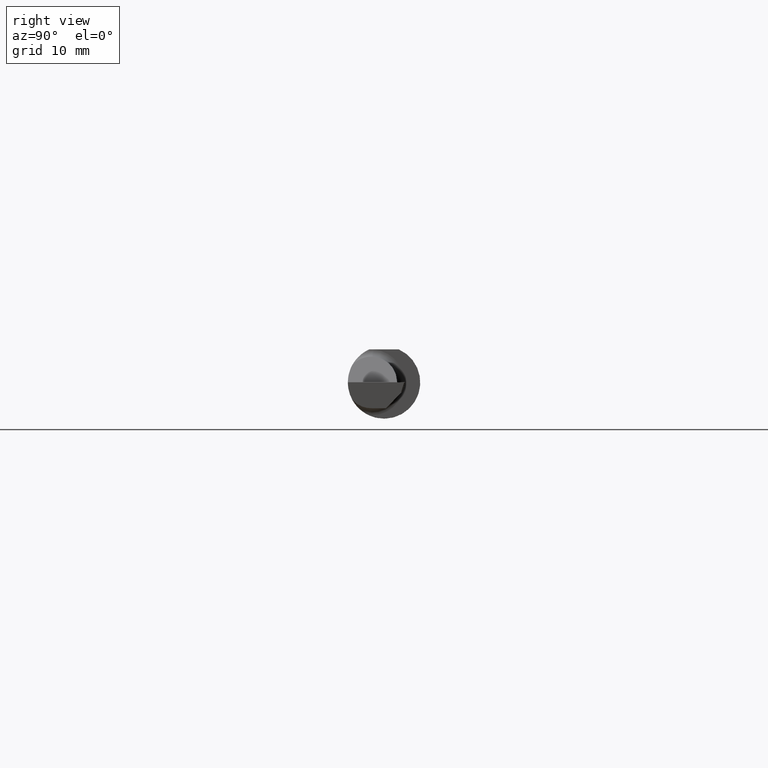
[diagram: clean part render]
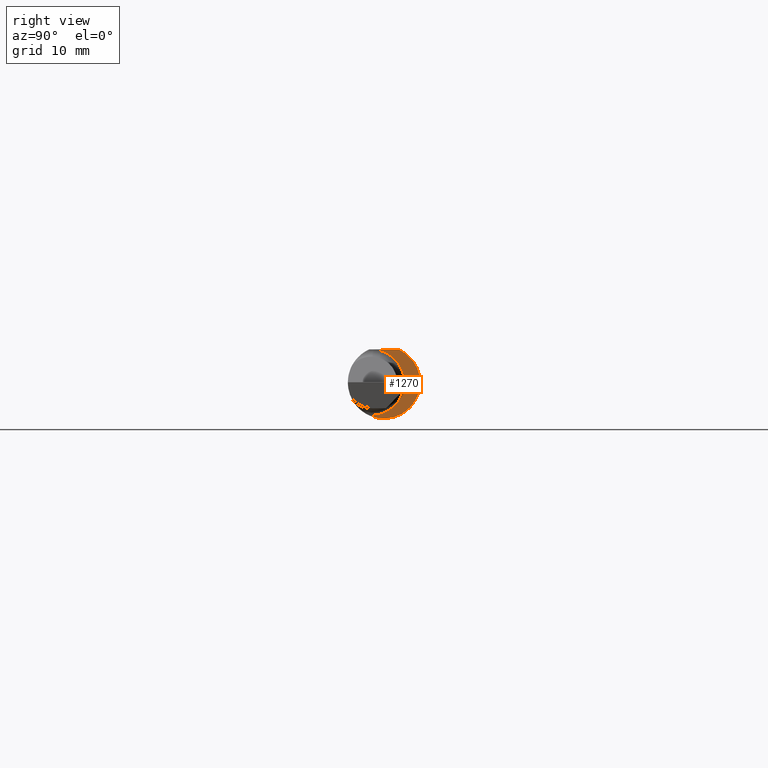
[diagram: same view with one face highlighted and labeled with its STEP entity id]
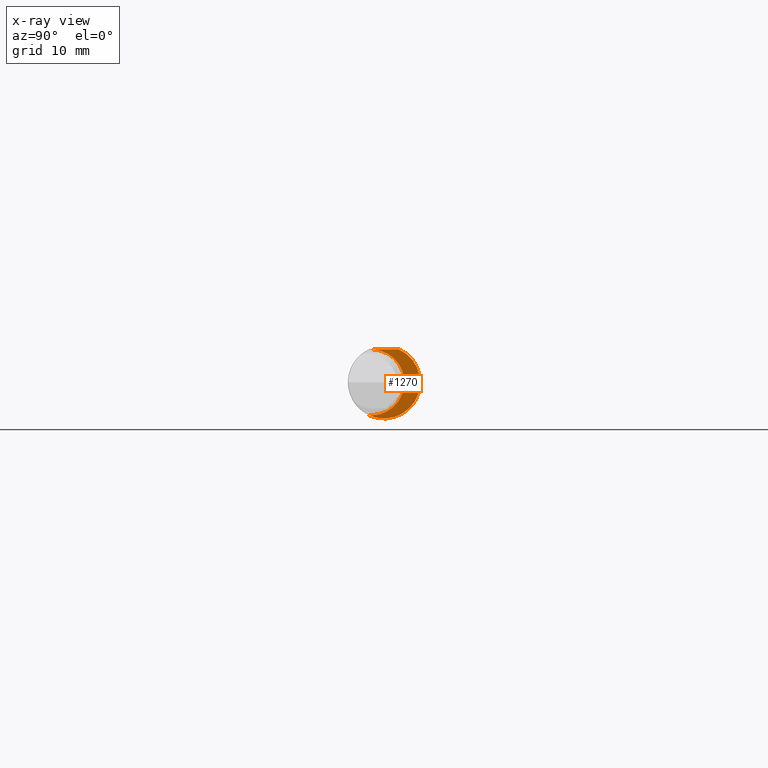
[diagram: x-ray of the same camera — body ghosted, the highlighted face saturated]
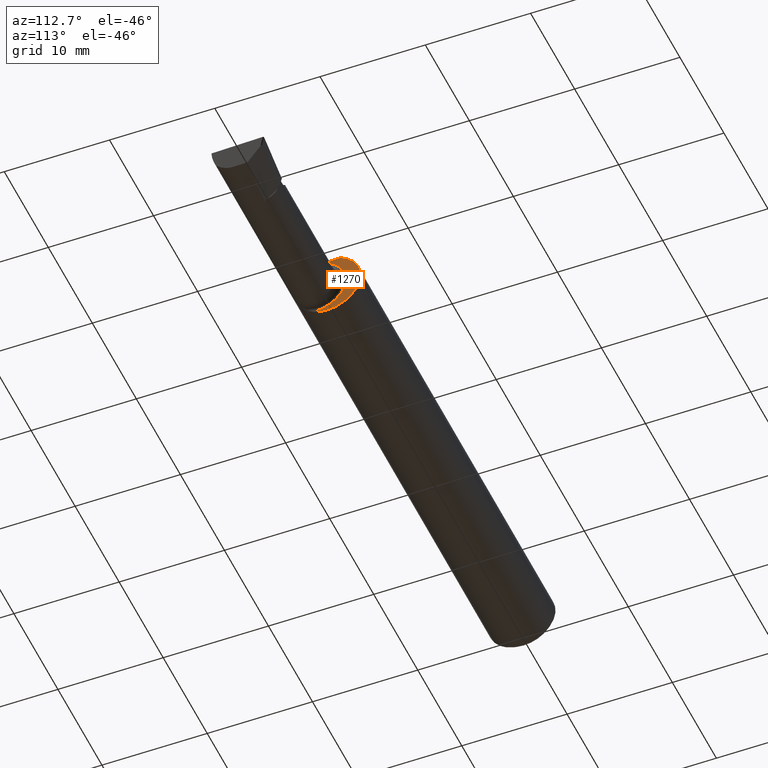
[diagram: same view with one face highlighted and labeled with its STEP entity id]
A machine part, right view. The second image highlights one B-rep face of the part: STEP entity #1270.
The next image is the same camera in x-ray: the body ghosted, the highlighted face saturated — about 0% of this face is hidden behind the body in this view.
A second angle (auxiliary view) of the same face is appended — the face is thin or edge-on in the first view.
In plain terms, the highlighted planar face has unit normal (1, 0, 0).
Its self-contained STEP definition (entity closure, byte-faithful):
#69 = DIRECTION ( 'NONE',  ( 0.000000000000000000, 0.000000000000000000, -1.000000000000000000 ) ) ;
#85 = VERTEX_POINT ( 'NONE', #1241 ) ;
#119 = AXIS2_PLACEMENT_3D ( 'NONE', #889, #279, #682 ) ;
#150 = CARTESIAN_POINT ( 'NONE',  ( 1.760000000000000009, 0.1000000000000000056, 0.1138500000000000068 ) ) ;
#175 = CARTESIAN_POINT ( 'NONE',  ( 1.760000000000000009, -0.04385000000000000009, 0.000000000000000000 ) ) ;
#193 = VERTEX_POINT ( 'NONE', #657 ) ;
#209 = CIRCLE ( 'NONE', #824, 0.1140000000000000041 ) ;
#228 = DIRECTION ( 'NONE',  ( 0.000000000000000000, 0.000000000000000000, -1.000000000000000000 ) ) ;
#267 = CARTESIAN_POINT ( 'NONE',  ( 1.760000000000000009, -0.05147485746864310929, -0.1137447209701746148 ) ) ;
#279 = DIRECTION ( 'NONE',  ( 1.000000000000000000, 0.000000000000000000, 0.000000000000000000 ) ) ;
#331 = EDGE_CURVE ( 'NONE', #85, #880, #979, .T. ) ;
#342 = EDGE_CURVE ( 'NONE', #1172, #85, #209, .T. ) ;
#348 = ORIENTED_EDGE ( 'NONE', *, *, #331, .T. ) ;
#436 = AXIS2_PLACEMENT_3D ( 'NONE', #1060, #1248, #228 ) ;
#453 = LINE ( 'NONE', #150, #1218 ) ;
#462 = ORIENTED_EDGE ( 'NONE', *, *, #342, .T. ) ;
#536 = FACE_OUTER_BOUND ( 'NONE', #1202, .T. ) ;
#549 = DIRECTION ( 'NONE',  ( 0.000000000000000000, -1.000000000000000000, 0.000000000000000000 ) ) ;
#577 = CARTESIAN_POINT ( 'NONE',  ( 1.760000000000000009, -0.04385000000000000009, 0.000000000000000000 ) ) ;
#601 = ORIENTED_EDGE ( 'NONE', *, *, #895, .T. ) ;
#637 = PLANE ( 'NONE',  #436 ) ;
#657 = CARTESIAN_POINT ( 'NONE',  ( 1.760000000000000009, 0.05124158467494929065, 0.1138500000000000068 ) ) ;
#682 = DIRECTION ( 'NONE',  ( 0.000000000000000000, 0.000000000000000000, -1.000000000000000000 ) ) ;
#686 = CIRCLE ( 'NONE', #119, 0.1248500000000000026 ) ;
#689 = DIRECTION ( 'NONE',  ( -1.000000000000000000, -0.000000000000000000, -0.000000000000000000 ) ) ;
#709 = EDGE_CURVE ( 'NONE', #193, #1172, #453, .T. ) ;
#824 = AXIS2_PLACEMENT_3D ( 'NONE', #175, #1002, #1113 ) ;
#880 = VERTEX_POINT ( 'NONE', #267 ) ;
#889 = CARTESIAN_POINT ( 'NONE',  ( 1.760000000000000009, 0.000000000000000000, 0.000000000000000000 ) ) ;
#895 = EDGE_CURVE ( 'NONE', #880, #193, #686, .T. ) ;
#979 = CIRCLE ( 'NONE', #1067, 0.1140000000000000041 ) ;
#1002 = DIRECTION ( 'NONE',  ( -1.000000000000000000, -0.000000000000000000, -0.000000000000000000 ) ) ;
#1060 = CARTESIAN_POINT ( 'NONE',  ( 1.760000000000000009, 0.1951499999999999624, 0.000000000000000000 ) ) ;
#1067 = AXIS2_PLACEMENT_3D ( 'NONE', #577, #689, #69 ) ;
#1113 = DIRECTION ( 'NONE',  ( 0.000000000000000000, 0.000000000000000000, -1.000000000000000000 ) ) ;
#1172 = VERTEX_POINT ( 'NONE', #1174 ) ;
#1174 = CARTESIAN_POINT ( 'NONE',  ( 1.760000000000000009, -0.03800384741902852748, 0.1138500000000000068 ) ) ;
#1202 = EDGE_LOOP ( 'NONE', ( #1211, #462, #348, #601 ) ) ;
#1211 = ORIENTED_EDGE ( 'NONE', *, *, #709, .T. ) ;
#1218 = VECTOR ( 'NONE', #549, 39.37007874015748143 ) ;
#1241 = CARTESIAN_POINT ( 'NONE',  ( 1.760000000000000009, -0.04385000000000000009, -0.1140000000000000041 ) ) ;
#1248 = DIRECTION ( 'NONE',  ( 1.000000000000000000, 0.000000000000000000, 0.000000000000000000 ) ) ;
#1270 = ADVANCED_FACE ( 'NONE', ( #536 ), #637, .T. ) ;